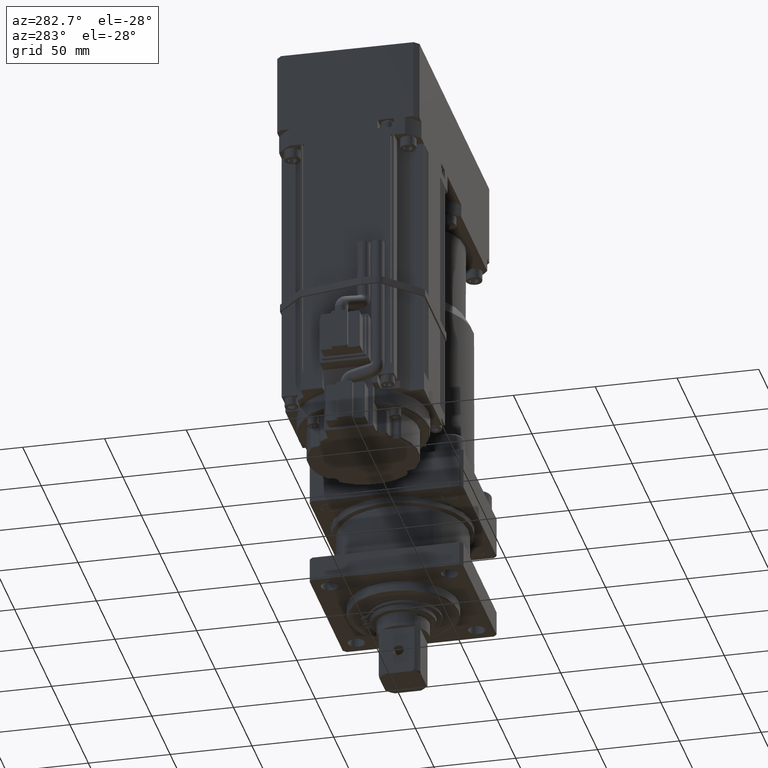
[diagram: clean part render]
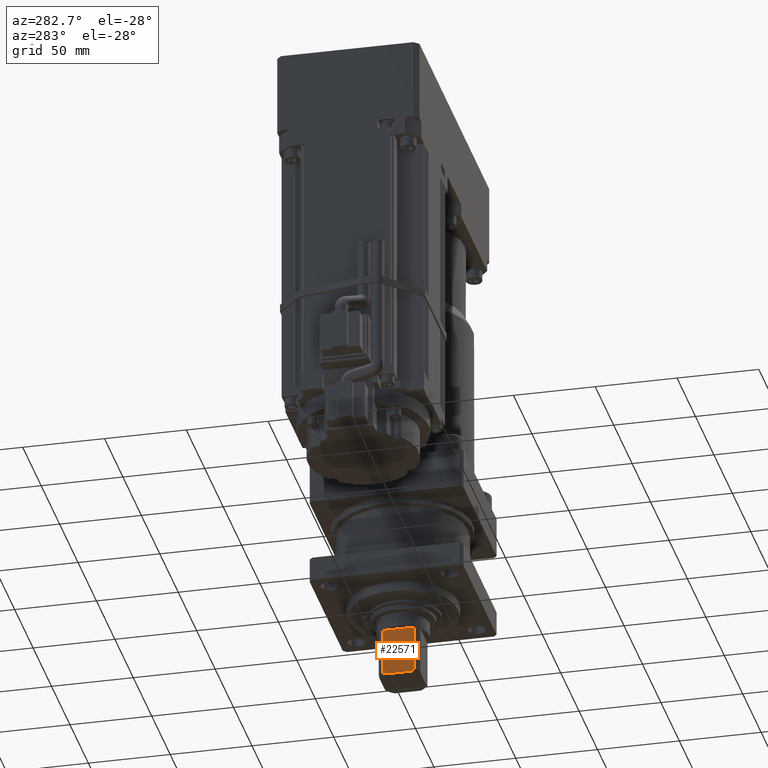
[diagram: same view with one face highlighted and labeled with its STEP entity id]
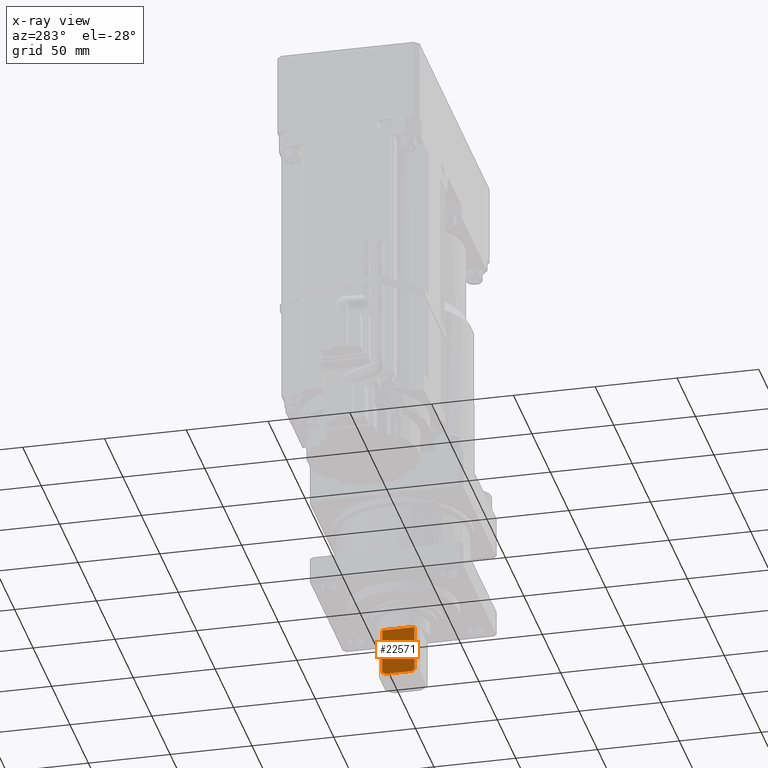
[diagram: x-ray of the same camera — body ghosted, the highlighted face saturated]
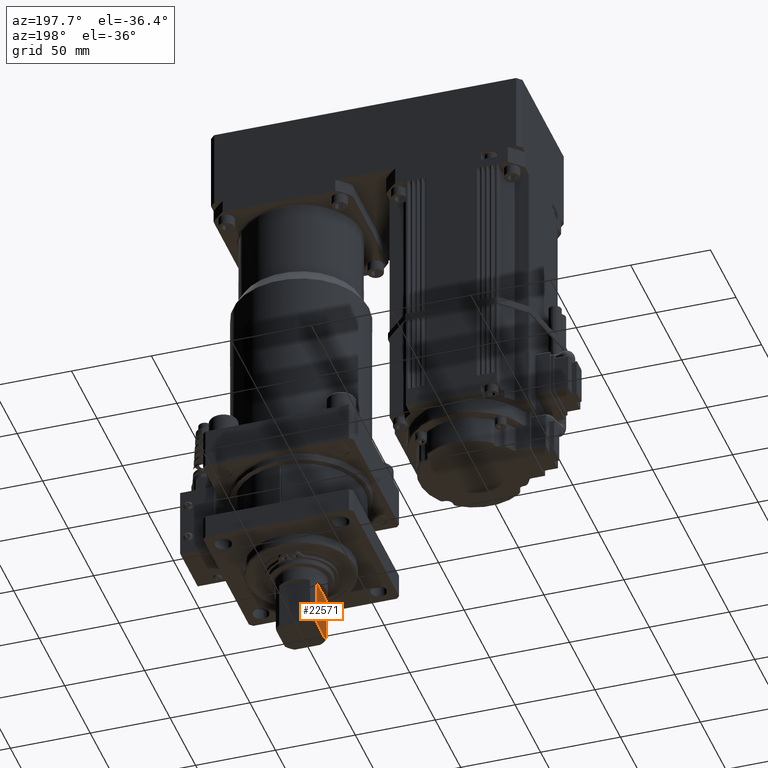
[diagram: same view with one face highlighted and labeled with its STEP entity id]
A machine part, auxiliary view. The second image highlights one B-rep face of the part: STEP entity #22571.
The next image is the same camera in x-ray: the body ghosted, the highlighted face saturated — about 0% of this face is hidden behind the body in this view.
A second angle (auxiliary view) of the same face is appended — the face is thin or edge-on in the first view.
In plain terms, the highlighted planar face has unit normal (1, -0, 0).
Its self-contained STEP definition (entity closure, byte-faithful):
#180=(
BOUNDED_CURVE()
B_SPLINE_CURVE(2,(#37666,#37667,#37668),.UNSPECIFIED.,.F.,.F.)
B_SPLINE_CURVE_WITH_KNOTS((3,3),(0.,0.367775453415331),.UNSPECIFIED.)
CURVE()
GEOMETRIC_REPRESENTATION_ITEM()
RATIONAL_B_SPLINE_CURVE((1.,1.01863336426329,1.03430708268586))
REPRESENTATION_ITEM('')
);
#181=(
BOUNDED_CURVE()
B_SPLINE_CURVE(2,(#37672,#37673,#37674),.UNSPECIFIED.,.F.,.F.)
B_SPLINE_CURVE_WITH_KNOTS((3,3),(4.26311240232082,4.63088785577185),
 .UNSPECIFIED.)
CURVE()
GEOMETRIC_REPRESENTATION_ITEM()
RATIONAL_B_SPLINE_CURVE((1.0343070826889,1.0186333642651,1.))
REPRESENTATION_ITEM('')
);
#401=FACE_BOUND('',#7939,.T.);
#1073=PLANE('',#24681);
#3098=LINE('',#37505,#5072);
#3107=LINE('',#37624,#5081);
#3109=LINE('',#37627,#5083);
#3116=LINE('',#37671,#5090);
#5072=VECTOR('',#30603,10.);
#5081=VECTOR('',#30650,10.);
#5083=VECTOR('',#30652,10.);
#5090=VECTOR('',#30681,10.);
#6606=FACE_OUTER_BOUND('',#7938,.T.);
#7938=EDGE_LOOP('',(#19889,#19890,#19891,#19892,#19893,#19894));
#7939=EDGE_LOOP('',(#19895));
#8909=CIRCLE('',#24675,3.25);
#10822=VERTEX_POINT('',#37476);
#10825=VERTEX_POINT('',#37492);
#10844=VERTEX_POINT('',#37622);
#10845=VERTEX_POINT('',#37626);
#10850=VERTEX_POINT('',#37640);
#10855=VERTEX_POINT('',#37664);
#10856=VERTEX_POINT('',#37670);
#13854=EDGE_CURVE('',#10825,#10822,#3098,.T.);
#13879=EDGE_CURVE('',#10844,#10825,#3107,.T.);
#13881=EDGE_CURVE('',#10822,#10845,#3109,.T.);
#13890=EDGE_CURVE('',#10850,#10850,#8909,.T.);
#13898=EDGE_CURVE('',#10855,#10844,#180,.T.);
#13899=EDGE_CURVE('',#10856,#10855,#3116,.T.);
#13900=EDGE_CURVE('',#10845,#10856,#181,.T.);
#19889=ORIENTED_EDGE('',*,*,#13854,.F.);
#19890=ORIENTED_EDGE('',*,*,#13879,.F.);
#19891=ORIENTED_EDGE('',*,*,#13898,.F.);
#19892=ORIENTED_EDGE('',*,*,#13899,.F.);
#19893=ORIENTED_EDGE('',*,*,#13900,.F.);
#19894=ORIENTED_EDGE('',*,*,#13881,.F.);
#19895=ORIENTED_EDGE('',*,*,#13890,.T.);
#22571=ADVANCED_FACE('',(#6606,#401),#1073,.F.);
#24675=AXIS2_PLACEMENT_3D('',#37642,#30666,#30667);
#24681=AXIS2_PLACEMENT_3D('',#37669,#30679,#30680);
#30603=DIRECTION('',(-1.11022302462516E-16,-1.,-9.15582008247329E-32));
#30650=DIRECTION('',(-3.6704673784474E-16,-5.04688723089224E-32,1.));
#30652=DIRECTION('',(3.6704673784474E-16,5.04688723089224E-32,-1.));
#30666=DIRECTION('center_axis',(1.,-1.11022302462516E-16,3.84437349085226E-16));
#30667=DIRECTION('ref_axis',(3.84437349085227E-16,4.85381266077731E-32,
-1.));
#30679=DIRECTION('center_axis',(1.,-1.11022302462516E-16,3.84437349085226E-16));
#30680=DIRECTION('ref_axis',(1.11022302462516E-16,1.,9.12192462558008E-32));
#30681=DIRECTION('',(1.11022302462516E-16,1.,9.12192462558008E-32));
#37476=CARTESIAN_POINT('',(-59.7000000000001,37.2680937119185,-20.5000000000001));
#37492=CARTESIAN_POINT('',(-59.7000000000001,56.7319062880815,-20.5000000000001));
#37505=CARTESIAN_POINT('',(-59.7000000000001,42.1340468559593,-20.5000000000001));
#37622=CARTESIAN_POINT('',(-59.7000000000001,56.7319062880815,-49.));
#37624=CARTESIAN_POINT('',(-59.7000000000001,56.7319062880815,-30.5));
#37626=CARTESIAN_POINT('',(-59.7000000000001,37.2680937119185,-49.));
#37627=CARTESIAN_POINT('',(-59.7000000000001,37.2680937119185,-30.5));
#37640=CARTESIAN_POINT('',(-59.7000000000001,47.,-31.7500000000001));
#37642=CARTESIAN_POINT('Origin',(-59.7000000000001,47.,-35.0000000000001));
#37664=CARTESIAN_POINT('',(-59.7000000000001,54.981854421123,-50.));
#37666=CARTESIAN_POINT('Ctrl Pts',(-59.7000000000001,54.981854421123,-50.));
#37667=CARTESIAN_POINT('Ctrl Pts',(-59.7000000000001,55.8286537115868,-49.5493980893072));
#37668=CARTESIAN_POINT('Ctrl Pts',(-59.7000000000001,56.7319062880815,-49.));
#37669=CARTESIAN_POINT('Origin',(-59.7000000000001,37.2680937119185,-50.));
#37670=CARTESIAN_POINT('',(-59.7000000000001,39.0181455788771,-50.));
#37671=CARTESIAN_POINT('',(-59.7000000000001,42.1340468559593,-50.));
#37672=CARTESIAN_POINT('Ctrl Pts',(-59.7000000000001,37.2680937119185,-49.));
#37673=CARTESIAN_POINT('Ctrl Pts',(-59.7000000000001,38.1713462885052,-49.5493980893693));
#37674=CARTESIAN_POINT('Ctrl Pts',(-59.7000000000001,39.018145578877,-50.));